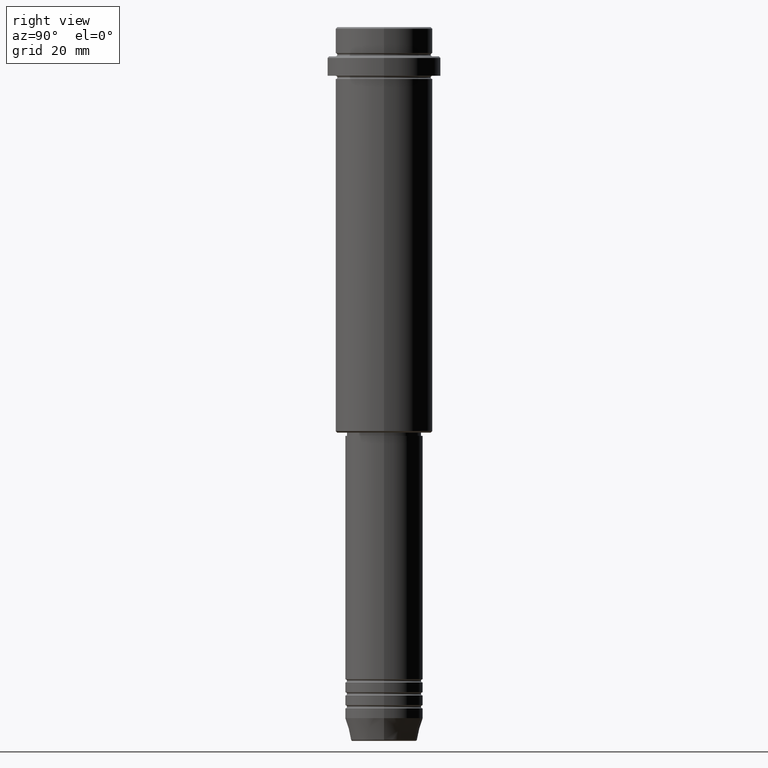
[diagram: clean part render]
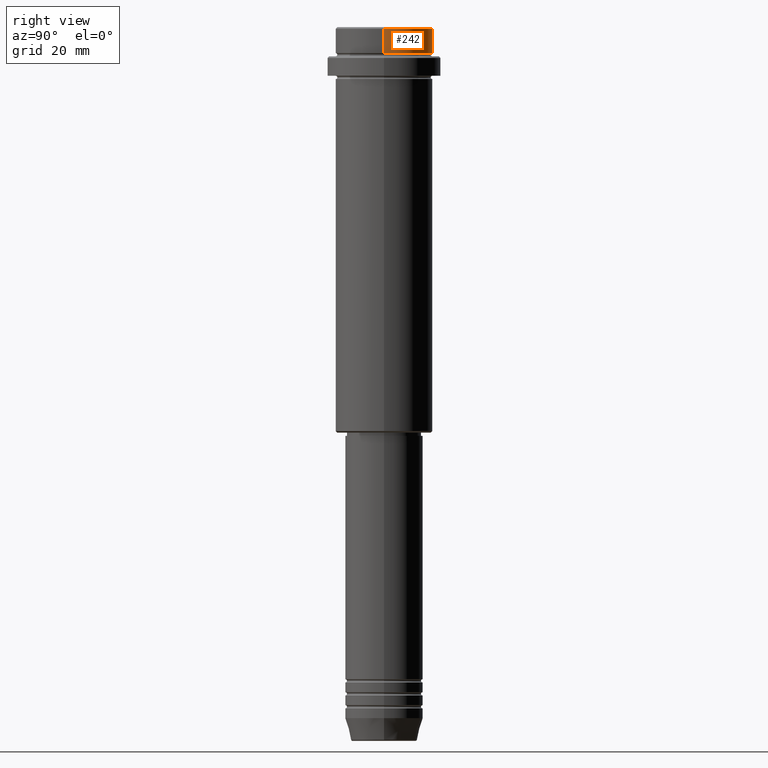
[diagram: same view with one face highlighted and labeled with its STEP entity id]
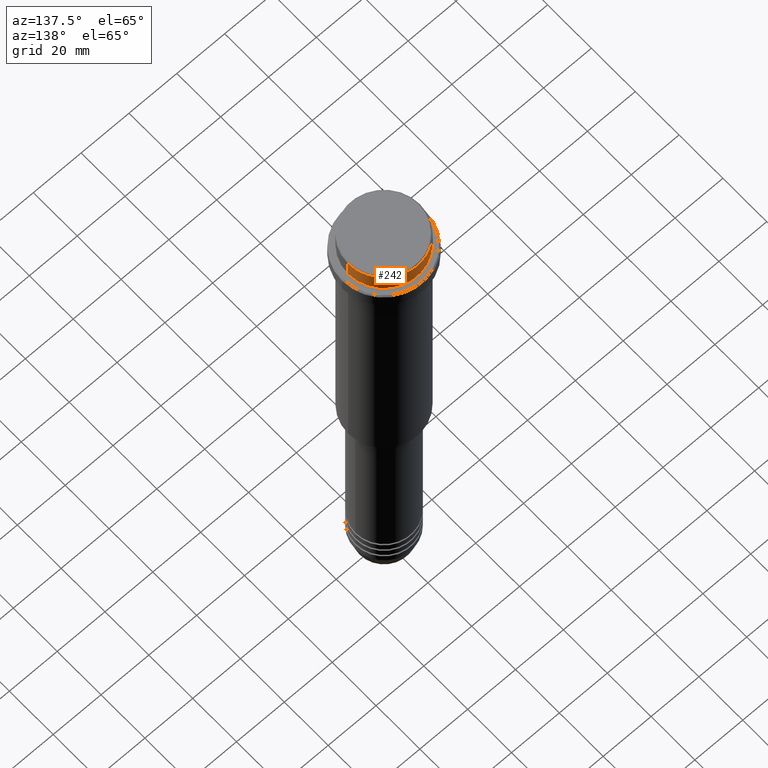
[diagram: same view with one face highlighted and labeled with its STEP entity id]
A machine part, right view. The second image highlights one B-rep face of the part: STEP entity #242.
A second angle (auxiliary view) of the same face is appended — the face is thin or edge-on in the first view.
In plain terms, the highlighted cylindrical surface (partial cylindrical patch) has radius 15 mm, axis along (-0, -0, 1).
Its self-contained STEP definition (entity closure, byte-faithful):
#91 = CIRCLE ( 'NONE', #362, 15.00000000000000000 ) ;
#217 = VERTEX_POINT ( 'NONE', #894 ) ;
#231 = DIRECTION ( 'NONE',  ( 1.000000000000000000, 0.000000000000000000, 0.000000000000000000 ) ) ;
#242 = ADVANCED_FACE ( 'NONE', ( #340 ), #1310, .T. ) ;
#244 = VERTEX_POINT ( 'NONE', #258 ) ;
#258 = CARTESIAN_POINT ( 'NONE',  ( -15.00000000000000000, 1.836970198721029589E-15, -0.5000000000000108802 ) ) ;
#321 = DIRECTION ( 'NONE',  ( -0.000000000000000000, -0.000000000000000000, 1.000000000000000000 ) ) ;
#326 = DIRECTION ( 'NONE',  ( 0.000000000000000000, 0.000000000000000000, -1.000000000000000000 ) ) ;
#332 = CARTESIAN_POINT ( 'NONE',  ( -15.00000000000000000, 1.836970198721029589E-15, 0.000000000000000000 ) ) ;
#340 = FACE_OUTER_BOUND ( 'NONE', #1112, .T. ) ;
#350 = CARTESIAN_POINT ( 'NONE',  ( -15.00000000000000000, 1.836970198721029589E-15, -7.999999999999998224 ) ) ;
#362 = AXIS2_PLACEMENT_3D ( 'NONE', #1324, #773, #974 ) ;
#365 = DIRECTION ( 'NONE',  ( -0.000000000000000000, -0.000000000000000000, 1.000000000000000000 ) ) ;
#406 = AXIS2_PLACEMENT_3D ( 'NONE', #420, #326, #231 ) ;
#420 = CARTESIAN_POINT ( 'NONE',  ( 0.000000000000000000, 0.000000000000000000, -0.5000000000000108802 ) ) ;
#425 = VECTOR ( 'NONE', #1002, 1000.000000000000000 ) ;
#483 = ORIENTED_EDGE ( 'NONE', *, *, #820, .T. ) ;
#546 = CARTESIAN_POINT ( 'NONE',  ( 15.00000000000000000, 0.000000000000000000, 0.000000000000000000 ) ) ;
#549 = EDGE_CURVE ( 'NONE', #1387, #583, #91, .T. ) ;
#583 = VERTEX_POINT ( 'NONE', #350 ) ;
#602 = ORIENTED_EDGE ( 'NONE', *, *, #985, .F. ) ;
#770 = EDGE_CURVE ( 'NONE', #244, #217, #1165, .T. ) ;
#773 = DIRECTION ( 'NONE',  ( -0.000000000000000000, -0.000000000000000000, 1.000000000000000000 ) ) ;
#776 = ORIENTED_EDGE ( 'NONE', *, *, #549, .T. ) ;
#791 = AXIS2_PLACEMENT_3D ( 'NONE', #1320, #365, #1205 ) ;
#805 = CARTESIAN_POINT ( 'NONE',  ( 15.00000000000000000, 0.000000000000000000, -7.999999999999998224 ) ) ;
#820 = EDGE_CURVE ( 'NONE', #583, #244, #870, .T. ) ;
#870 = LINE ( 'NONE', #332, #1114 ) ;
#894 = CARTESIAN_POINT ( 'NONE',  ( 15.00000000000000000, 0.000000000000000000, -0.5000000000000108802 ) ) ;
#974 = DIRECTION ( 'NONE',  ( 1.000000000000000000, 0.000000000000000000, 0.000000000000000000 ) ) ;
#985 = EDGE_CURVE ( 'NONE', #1387, #217, #1096, .T. ) ;
#1002 = DIRECTION ( 'NONE',  ( -0.000000000000000000, -0.000000000000000000, 1.000000000000000000 ) ) ;
#1096 = LINE ( 'NONE', #546, #425 ) ;
#1112 = EDGE_LOOP ( 'NONE', ( #776, #483, #1188, #602 ) ) ;
#1114 = VECTOR ( 'NONE', #321, 1000.000000000000000 ) ;
#1165 = CIRCLE ( 'NONE', #406, 15.00000000000000000 ) ;
#1188 = ORIENTED_EDGE ( 'NONE', *, *, #770, .T. ) ;
#1205 = DIRECTION ( 'NONE',  ( 1.000000000000000000, 0.000000000000000000, 0.000000000000000000 ) ) ;
#1310 = CYLINDRICAL_SURFACE ( 'NONE', #791, 15.00000000000000000 ) ;
#1320 = CARTESIAN_POINT ( 'NONE',  ( 0.000000000000000000, 0.000000000000000000, 0.000000000000000000 ) ) ;
#1324 = CARTESIAN_POINT ( 'NONE',  ( 0.000000000000000000, 0.000000000000000000, -7.999999999999998224 ) ) ;
#1387 = VERTEX_POINT ( 'NONE', #805 ) ;